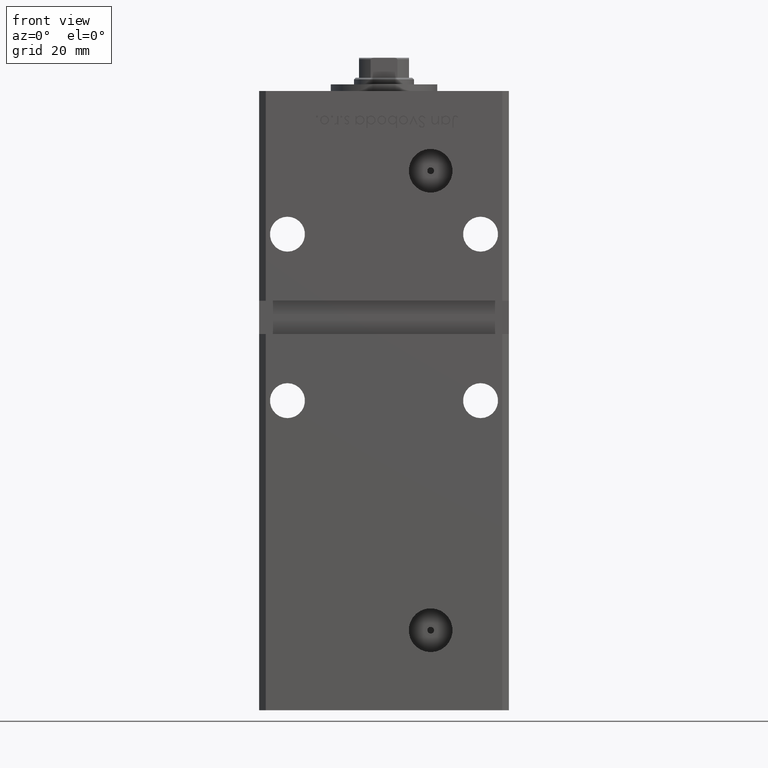
[diagram: clean part render]
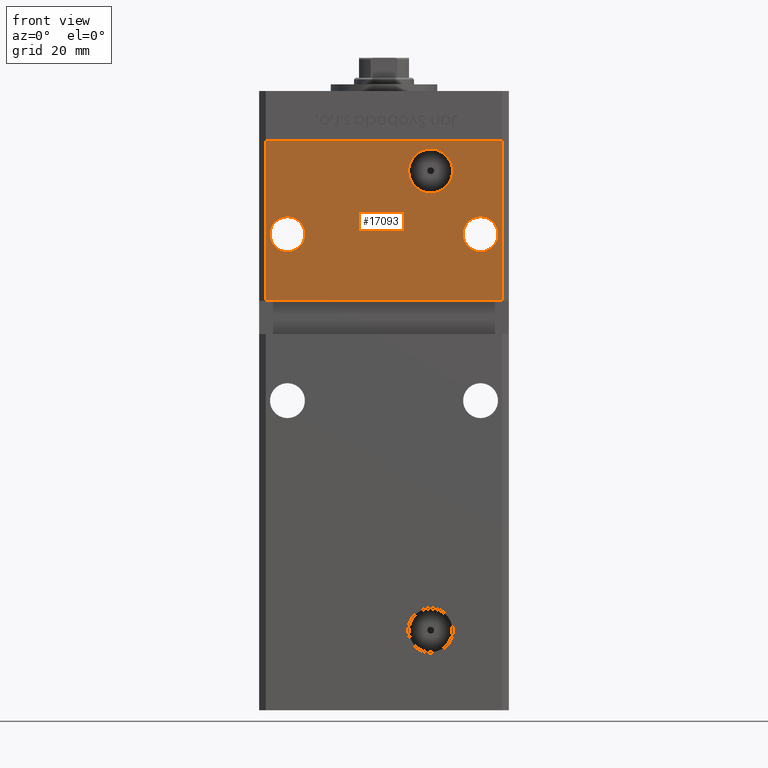
[diagram: same view with one face highlighted and labeled with its STEP entity id]
A machine part, front view. The second image highlights one B-rep face of the part: STEP entity #17093.
In plain terms, the highlighted planar face has unit normal (0, 1, 0).
Its self-contained STEP definition (entity closure, byte-faithful):
#172 = CARTESIAN_POINT ( 'NONE',  ( -28.99999999999999645, -32.50000000000000000, 128.0000000000000000 ) ) ;
#279 = VERTEX_POINT ( 'NONE', #39908 ) ;
#1072 = AXIS2_PLACEMENT_3D ( 'NONE', #20949, #38156, #1287 ) ;
#1287 = DIRECTION ( 'NONE',  ( 0.000000000000000000, 0.000000000000000000, 1.000000000000000000 ) ) ;
#1550 = CARTESIAN_POINT ( 'NONE',  ( -37.49999999999999289, -32.50000000000000000, 108.0000000000000142 ) ) ;
#2033 = CIRCLE ( 'NONE', #44983, 5.250000000000004441 ) ;
#3643 = CARTESIAN_POINT ( 'NONE',  ( 13.99999999999997513, -32.50000000000000000, 147.0000000000000284 ) ) ;
#4513 = VERTEX_POINT ( 'NONE', #25346 ) ;
#5440 = CIRCLE ( 'NONE', #48418, 6.580000000000002736 ) ;
#5858 = DIRECTION ( 'NONE',  ( -0.000000000000000000, -0.000000000000000000, -1.000000000000000000 ) ) ;
#8008 = DIRECTION ( 'NONE',  ( 0.000000000000000000, 1.000000000000000000, 0.000000000000000000 ) ) ;
#8223 = EDGE_CURVE ( 'NONE', #46247, #15223, #30597, .T. ) ;
#9099 = CARTESIAN_POINT ( 'NONE',  ( 35.49999999999999289, -32.50000000000000000, 156.0000000000000000 ) ) ;
#9540 = AXIS2_PLACEMENT_3D ( 'NONE', #47921, #11054, #23446 ) ;
#9646 = CARTESIAN_POINT ( 'NONE',  ( 13.99999999999997513, -32.50000000000000000, 153.5800000000000125 ) ) ;
#10651 = EDGE_CURVE ( 'NONE', #279, #19310, #48578, .T. ) ;
#11054 = DIRECTION ( 'NONE',  ( 0.000000000000000000, 1.000000000000000000, 0.000000000000000000 ) ) ;
#11724 = CARTESIAN_POINT ( 'NONE',  ( -35.49999999999999289, -32.50000000000000000, 156.0000000000000000 ) ) ;
#13479 = LINE ( 'NONE', #37443, #34118 ) ;
#13633 = VECTOR ( 'NONE', #5858, 1000.000000000000000 ) ;
#14711 = EDGE_CURVE ( 'NONE', #279, #28705, #13479, .T. ) ;
#14916 = VERTEX_POINT ( 'NONE', #48413 ) ;
#15223 = VERTEX_POINT ( 'NONE', #38174 ) ;
#15470 = AXIS2_PLACEMENT_3D ( 'NONE', #50017, #21510, #46512 ) ;
#16048 = CARTESIAN_POINT ( 'NONE',  ( 35.49999999999999289, -32.50000000000000000, 108.0000000000000142 ) ) ;
#17085 = ORIENTED_EDGE ( 'NONE', *, *, #23703, .T. ) ;
#17093 = ADVANCED_FACE ( 'NONE', ( #36811, #53196, #25232, #24441 ), #41117, .F. ) ;
#17129 = DIRECTION ( 'NONE',  ( 0.000000000000000000, 0.000000000000000000, 1.000000000000000000 ) ) ;
#17352 = DIRECTION ( 'NONE',  ( 0.000000000000000000, 0.000000000000000000, 1.000000000000000000 ) ) ;
#17390 = DIRECTION ( 'NONE',  ( 0.000000000000000000, 1.000000000000000000, 0.000000000000000000 ) ) ;
#19310 = VERTEX_POINT ( 'NONE', #21233 ) ;
#19323 = EDGE_CURVE ( 'NONE', #19310, #24688, #46238, .T. ) ;
#20949 = CARTESIAN_POINT ( 'NONE',  ( -28.99999999999999645, -32.50000000000000000, 128.0000000000000000 ) ) ;
#21233 = CARTESIAN_POINT ( 'NONE',  ( 35.49999999999999289, -32.50000000000000000, 156.0000000000000000 ) ) ;
#21510 = DIRECTION ( 'NONE',  ( -0.000000000000000000, 1.000000000000000000, -0.000000000000000000 ) ) ;
#22583 = ORIENTED_EDGE ( 'NONE', *, *, #14711, .T. ) ;
#23446 = DIRECTION ( 'NONE',  ( 0.000000000000000000, 0.000000000000000000, 1.000000000000000000 ) ) ;
#23676 = CARTESIAN_POINT ( 'NONE',  ( -35.49999999999999289, -32.50000000000000000, 108.0000000000000142 ) ) ;
#23703 = EDGE_CURVE ( 'NONE', #23723, #36260, #24943, .T. ) ;
#23723 = VERTEX_POINT ( 'NONE', #9646 ) ;
#24441 = FACE_BOUND ( 'NONE', #45494, .T. ) ;
#24688 = VERTEX_POINT ( 'NONE', #16048 ) ;
#24943 = CIRCLE ( 'NONE', #15470, 6.580000000000002736 ) ;
#25232 = FACE_OUTER_BOUND ( 'NONE', #28082, .T. ) ;
#25339 = DIRECTION ( 'NONE',  ( -0.000000000000000000, -0.000000000000000000, -1.000000000000000000 ) ) ;
#25346 = CARTESIAN_POINT ( 'NONE',  ( 28.99999999999999645, -32.50000000000000000, 122.7500000000000000 ) ) ;
#26229 = CARTESIAN_POINT ( 'NONE',  ( -28.99999999999999645, -32.50000000000000000, 133.2500000000000000 ) ) ;
#26598 = ORIENTED_EDGE ( 'NONE', *, *, #10651, .F. ) ;
#27082 = DIRECTION ( 'NONE',  ( 1.000000000000000000, 0.000000000000000000, 0.000000000000000000 ) ) ;
#28082 = EDGE_LOOP ( 'NONE', ( #22583, #43751, #47791, #26598 ) ) ;
#28423 = ORIENTED_EDGE ( 'NONE', *, *, #8223, .T. ) ;
#28705 = VERTEX_POINT ( 'NONE', #23676 ) ;
#29876 = EDGE_LOOP ( 'NONE', ( #28423, #39317 ) ) ;
#30597 = CIRCLE ( 'NONE', #38346, 5.250000000000004441 ) ;
#31033 = EDGE_CURVE ( 'NONE', #4513, #14916, #45627, .T. ) ;
#33829 = CARTESIAN_POINT ( 'NONE',  ( -35.49999999999999289, -32.50000000000000000, 156.0000000000000000 ) ) ;
#34118 = VECTOR ( 'NONE', #25339, 1000.000000000000000 ) ;
#34122 = VECTOR ( 'NONE', #27082, 1000.000000000000000 ) ;
#35359 = DIRECTION ( 'NONE',  ( -1.000000000000000000, -0.000000000000000000, -0.000000000000000000 ) ) ;
#36260 = VERTEX_POINT ( 'NONE', #41277 ) ;
#36767 = ORIENTED_EDGE ( 'NONE', *, *, #31033, .T. ) ;
#36811 = FACE_BOUND ( 'NONE', #46846, .T. ) ;
#37443 = CARTESIAN_POINT ( 'NONE',  ( -35.49999999999999289, -32.50000000000000000, 156.0000000000000000 ) ) ;
#37527 = EDGE_CURVE ( 'NONE', #14916, #4513, #2033, .T. ) ;
#37786 = EDGE_CURVE ( 'NONE', #36260, #23723, #5440, .T. ) ;
#38156 = DIRECTION ( 'NONE',  ( 0.000000000000000000, 1.000000000000000000, 0.000000000000000000 ) ) ;
#38174 = CARTESIAN_POINT ( 'NONE',  ( -28.99999999999999645, -32.50000000000000000, 122.7500000000000000 ) ) ;
#38346 = AXIS2_PLACEMENT_3D ( 'NONE', #172, #41328, #17352 ) ;
#38411 = LINE ( 'NONE', #1550, #42285 ) ;
#39317 = ORIENTED_EDGE ( 'NONE', *, *, #41346, .T. ) ;
#39908 = CARTESIAN_POINT ( 'NONE',  ( -35.49999999999999289, -32.50000000000000000, 156.0000000000000000 ) ) ;
#41117 = PLANE ( 'NONE',  #45342 ) ;
#41277 = CARTESIAN_POINT ( 'NONE',  ( 13.99999999999997513, -32.50000000000000000, 140.4200000000000159 ) ) ;
#41310 = DIRECTION ( 'NONE',  ( 0.000000000000000000, 0.000000000000000000, -1.000000000000000000 ) ) ;
#41328 = DIRECTION ( 'NONE',  ( 0.000000000000000000, 1.000000000000000000, 0.000000000000000000 ) ) ;
#41346 = EDGE_CURVE ( 'NONE', #15223, #46247, #48304, .T. ) ;
#41910 = DIRECTION ( 'NONE',  ( 0.000000000000000000, -0.000000000000000000, 1.000000000000000000 ) ) ;
#42285 = VECTOR ( 'NONE', #35359, 1000.000000000000000 ) ;
#43022 = ORIENTED_EDGE ( 'NONE', *, *, #37786, .T. ) ;
#43751 = ORIENTED_EDGE ( 'NONE', *, *, #44403, .F. ) ;
#44403 = EDGE_CURVE ( 'NONE', #24688, #28705, #38411, .T. ) ;
#44548 = DIRECTION ( 'NONE',  ( -0.000000000000000000, 1.000000000000000000, -0.000000000000000000 ) ) ;
#44983 = AXIS2_PLACEMENT_3D ( 'NONE', #50741, #17390, #17129 ) ;
#45342 = AXIS2_PLACEMENT_3D ( 'NONE', #33829, #8008, #41910 ) ;
#45494 = EDGE_LOOP ( 'NONE', ( #43022, #17085 ) ) ;
#45627 = CIRCLE ( 'NONE', #9540, 5.250000000000004441 ) ;
#46238 = LINE ( 'NONE', #9099, #13633 ) ;
#46247 = VERTEX_POINT ( 'NONE', #26229 ) ;
#46512 = DIRECTION ( 'NONE',  ( 0.000000000000000000, 0.000000000000000000, -1.000000000000000000 ) ) ;
#46846 = EDGE_LOOP ( 'NONE', ( #52927, #36767 ) ) ;
#47791 = ORIENTED_EDGE ( 'NONE', *, *, #19323, .F. ) ;
#47921 = CARTESIAN_POINT ( 'NONE',  ( 28.99999999999999645, -32.50000000000000000, 128.0000000000000000 ) ) ;
#48304 = CIRCLE ( 'NONE', #1072, 5.250000000000004441 ) ;
#48413 = CARTESIAN_POINT ( 'NONE',  ( 28.99999999999999645, -32.50000000000000000, 133.2500000000000000 ) ) ;
#48418 = AXIS2_PLACEMENT_3D ( 'NONE', #3643, #44548, #41310 ) ;
#48578 = LINE ( 'NONE', #11724, #34122 ) ;
#50017 = CARTESIAN_POINT ( 'NONE',  ( 13.99999999999997513, -32.50000000000000000, 147.0000000000000284 ) ) ;
#50741 = CARTESIAN_POINT ( 'NONE',  ( 28.99999999999999645, -32.50000000000000000, 128.0000000000000000 ) ) ;
#52927 = ORIENTED_EDGE ( 'NONE', *, *, #37527, .T. ) ;
#53196 = FACE_BOUND ( 'NONE', #29876, .T. ) ;